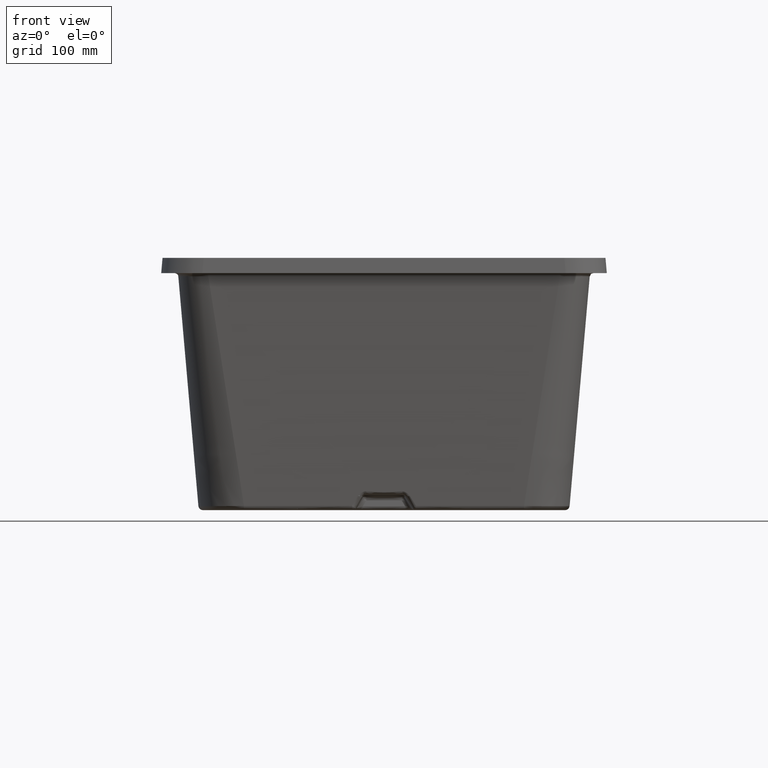
[diagram: clean part render]
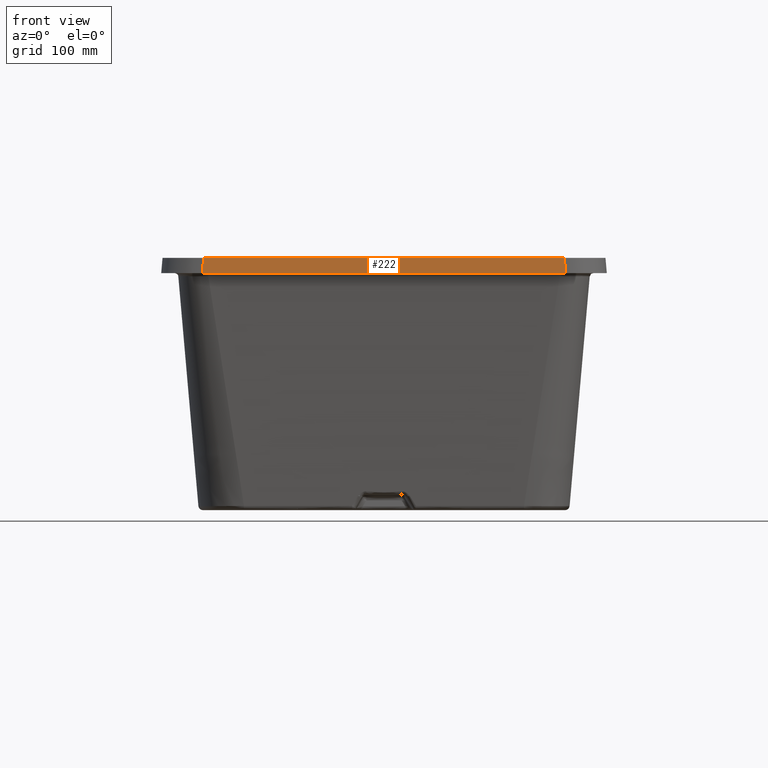
[diagram: same view with one face highlighted and labeled with its STEP entity id]
A machine part, front view. The second image highlights one B-rep face of the part: STEP entity #222.
In plain terms, the highlighted planar face has unit normal (0, 0.9962, -0.0872).
Its self-contained STEP definition (entity closure, byte-faithful):
#59=PLANE('',#1392);
#71=LINE('',#3077,#95);
#80=LINE('',#3641,#104);
#81=LINE('',#3645,#105);
#82=LINE('',#3647,#106);
#95=VECTOR('',#1486,1.);
#104=VECTOR('',#1527,1.);
#105=VECTOR('',#1532,1.);
#106=VECTOR('',#1533,1.);
#222=ADVANCED_FACE('',(#347),#59,.F.);
#347=FACE_OUTER_BOUND('',#437,.T.);
#437=EDGE_LOOP('',(#738,#739,#740,#741));
#738=ORIENTED_EDGE('',*,*,#1129,.T.);
#739=ORIENTED_EDGE('',*,*,#1174,.F.);
#740=ORIENTED_EDGE('',*,*,#1175,.F.);
#741=ORIENTED_EDGE('',*,*,#1172,.T.);
#980=VERTEX_POINT('',#3076);
#981=VERTEX_POINT('',#3078);
#1006=VERTEX_POINT('',#3642);
#1007=VERTEX_POINT('',#3646);
#1129=EDGE_CURVE('',#981,#980,#71,.T.);
#1172=EDGE_CURVE('',#1006,#981,#80,.T.);
#1174=EDGE_CURVE('',#1007,#980,#81,.T.);
#1175=EDGE_CURVE('',#1006,#1007,#82,.T.);
#1392=AXIS2_PLACEMENT_3D('',#3648,#1534,#1535);
#1486=DIRECTION('',(-1.,0.,0.));
#1527=DIRECTION('',(-0.0868265938642475,0.0868265938642475,0.992432509138967));
#1532=DIRECTION('',(0.0868265938642475,0.0868265938642475,0.992432509138967));
#1533=DIRECTION('',(-1.,0.,0.));
#1534=DIRECTION('',(0.,0.996194698091746,-0.0871557427476581));
#1535=DIRECTION('',(0.,-0.0871557427476581,-0.996194698091746));
#3076=CARTESIAN_POINT('',(-152.983140220893,-429.349954654104,0.));
#3077=CARTESIAN_POINT('',(-187.5,-429.349954654104,0.));
#3078=CARTESIAN_POINT('',(152.983140220893,-429.349954654104,0.));
#3641=CARTESIAN_POINT('',(150.06896998309,-426.435784416301,33.3091182372332));
#3642=CARTESIAN_POINT('',(154.120492846729,-430.487307279941,-13.));
#3645=CARTESIAN_POINT('',(-152.896041508865,-429.262855942076,0.995542833976177));
#3646=CARTESIAN_POINT('',(-154.120492846729,-430.487307279941,-13.));
#3647=CARTESIAN_POINT('',(-187.5,-430.487307279941,-13.));
#3648=CARTESIAN_POINT('',(-187.5,-429.,4.));